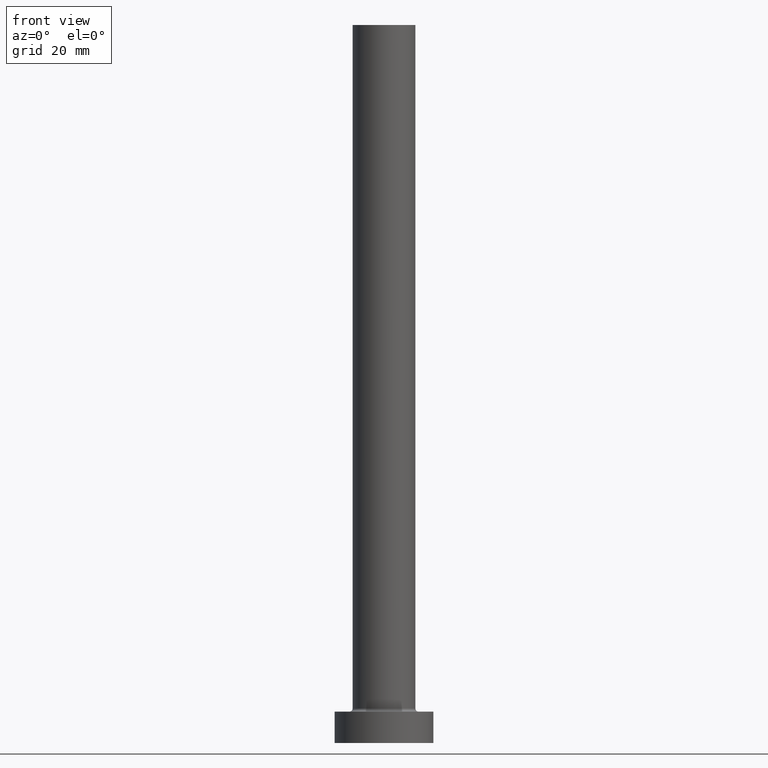
[diagram: clean part render]
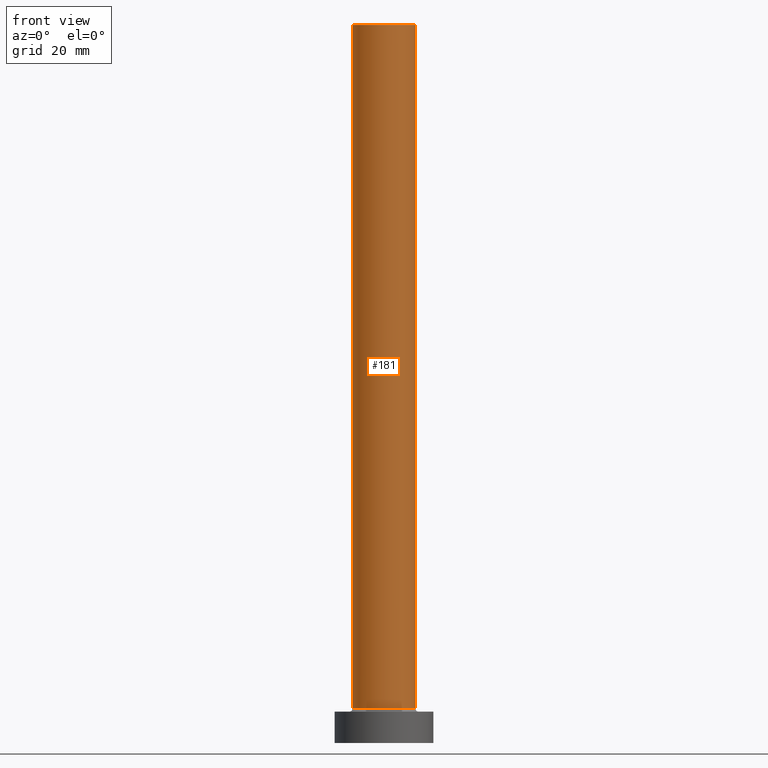
[diagram: same view with one face highlighted and labeled with its STEP entity id]
A machine part, front view. The second image highlights one B-rep face of the part: STEP entity #181.
In plain terms, the highlighted cylindrical surface (edge-blend (fillet) strip) has radius 7 mm, axis along (-0, -0, -1).
Its self-contained STEP definition (entity closure, byte-faithful):
#29 = EDGE_CURVE ( 'NONE', #436, #229, #381, .T. ) ;
#34 = CARTESIAN_POINT ( 'NONE',  ( 0.000000000000000000, 0.000000000000000000, 160.0000000000000000 ) ) ;
#37 = CARTESIAN_POINT ( 'NONE',  ( 0.000000000000000000, 0.000000000000000000, 7.700000000000012612 ) ) ;
#46 = EDGE_LOOP ( 'NONE', ( #410, #387, #454, #432 ) ) ;
#50 = DIRECTION ( 'NONE',  ( 0.000000000000000000, 0.000000000000000000, 1.000000000000000000 ) ) ;
#51 = CARTESIAN_POINT ( 'NONE',  ( -7.000000000000000888, 0.000000000000000000, 160.0000000000000000 ) ) ;
#65 = CARTESIAN_POINT ( 'NONE',  ( 7.000000000000000888, 8.572527594031474176E-16, 160.0000000000000000 ) ) ;
#84 = AXIS2_PLACEMENT_3D ( 'NONE', #34, #136, #214 ) ;
#99 = CARTESIAN_POINT ( 'NONE',  ( 7.000000000000000888, 8.572527594031474176E-16, 7.700000000000012612 ) ) ;
#103 = AXIS2_PLACEMENT_3D ( 'NONE', #146, #50, #299 ) ;
#136 = DIRECTION ( 'NONE',  ( -0.000000000000000000, -0.000000000000000000, -1.000000000000000000 ) ) ;
#146 = CARTESIAN_POINT ( 'NONE',  ( 0.000000000000000000, 0.000000000000000000, 160.0000000000000000 ) ) ;
#156 = DIRECTION ( 'NONE',  ( 0.000000000000000000, 0.000000000000000000, 1.000000000000000000 ) ) ;
#160 = CARTESIAN_POINT ( 'NONE',  ( -7.000000000000000888, 0.000000000000000000, 160.0000000000000000 ) ) ;
#168 = VERTEX_POINT ( 'NONE', #231 ) ;
#174 = CYLINDRICAL_SURFACE ( 'NONE', #84, 7.000000000000000888 ) ;
#177 = LINE ( 'NONE', #65, #339 ) ;
#181 = ADVANCED_FACE ( 'NONE', ( #402 ), #174, .T. ) ;
#210 = EDGE_CURVE ( 'NONE', #168, #425, #177, .T. ) ;
#214 = DIRECTION ( 'NONE',  ( -1.000000000000000000, 0.000000000000000000, 0.000000000000000000 ) ) ;
#228 = CARTESIAN_POINT ( 'NONE',  ( -7.000000000000000888, 0.000000000000000000, 7.700000000000012612 ) ) ;
#229 = VERTEX_POINT ( 'NONE', #228 ) ;
#231 = CARTESIAN_POINT ( 'NONE',  ( 7.000000000000000888, 8.572527594031474176E-16, 160.0000000000000000 ) ) ;
#277 = DIRECTION ( 'NONE',  ( 1.000000000000000000, 0.000000000000000000, 0.000000000000000000 ) ) ;
#286 = CIRCLE ( 'NONE', #411, 7.000000000000000888 ) ;
#299 = DIRECTION ( 'NONE',  ( 1.000000000000000000, 0.000000000000000000, 0.000000000000000000 ) ) ;
#327 = DIRECTION ( 'NONE',  ( -0.000000000000000000, -0.000000000000000000, -1.000000000000000000 ) ) ;
#332 = CIRCLE ( 'NONE', #103, 7.000000000000000888 ) ;
#339 = VECTOR ( 'NONE', #327, 1000.000000000000000 ) ;
#347 = DIRECTION ( 'NONE',  ( -0.000000000000000000, -0.000000000000000000, -1.000000000000000000 ) ) ;
#360 = EDGE_CURVE ( 'NONE', #229, #425, #286, .T. ) ;
#378 = EDGE_CURVE ( 'NONE', #436, #168, #332, .T. ) ;
#381 = LINE ( 'NONE', #51, #401 ) ;
#387 = ORIENTED_EDGE ( 'NONE', *, *, #378, .F. ) ;
#401 = VECTOR ( 'NONE', #347, 1000.000000000000000 ) ;
#402 = FACE_OUTER_BOUND ( 'NONE', #46, .T. ) ;
#410 = ORIENTED_EDGE ( 'NONE', *, *, #210, .F. ) ;
#411 = AXIS2_PLACEMENT_3D ( 'NONE', #37, #156, #277 ) ;
#425 = VERTEX_POINT ( 'NONE', #99 ) ;
#432 = ORIENTED_EDGE ( 'NONE', *, *, #360, .T. ) ;
#436 = VERTEX_POINT ( 'NONE', #160 ) ;
#454 = ORIENTED_EDGE ( 'NONE', *, *, #29, .T. ) ;